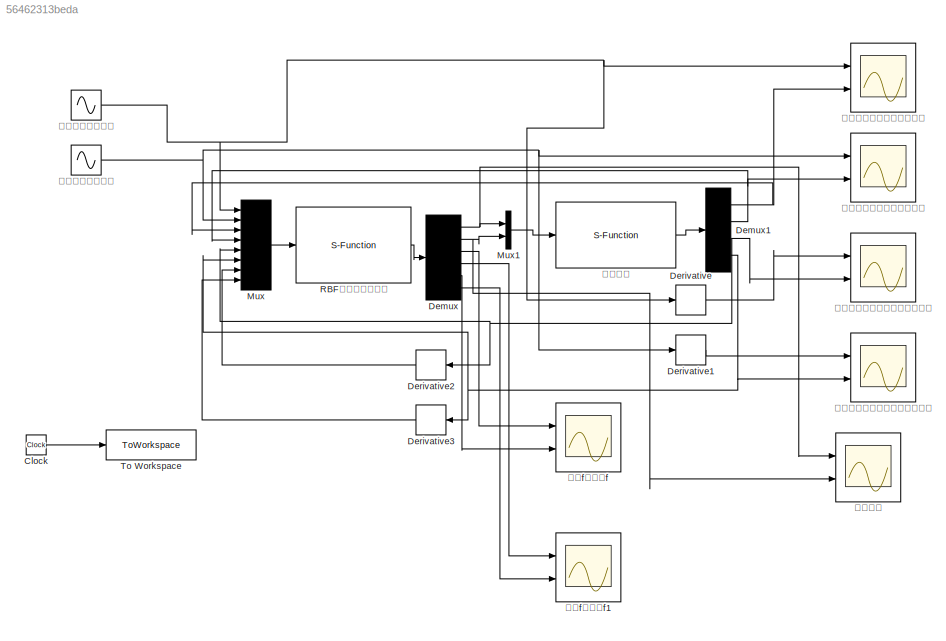
MODEL slx_56462313beda
KIND model
CONFIG AbsTol = auto
CONFIG EnableMultiTasking = off
CONFIG FixedStep = 0.001
CONFIG MaxStep = auto
CONFIG MinStep = auto
CONFIG RelTol = 1e-3
CONFIG SampleTimeConstraint = Unconstrained
CONFIG Solver = ode4
CONFIG SolverName = ode4
CONFIG StartTime = 0
CONFIG StopTime = 20
BLOCK [Clock] Clock
BLOCK [Demux] Demux
  DisplayOption = bar
  Outputs = 6
  Ports = [1, 6]
BLOCK [Demux] Demux1
  DisplayOption = bar
  Ports = [1, 4]
BLOCK [Derivative] Derivative
BLOCK [Derivative] Derivative1
BLOCK [Derivative] Derivative2
BLOCK [Derivative] Derivative3
BLOCK [Mux] Mux
  DisplayOption = bar
  Inputs = 8
  Ports = [8, 1]
BLOCK [Mux] Mux1
  DisplayOption = bar
  Inputs = 2
  Ports = [2, 1]
BLOCK [S-Function] RBF神经网络控制器
  EnableBusSupport = off
  FunctionName = Book6142_Controller
  Ports = [1, 1]
  SFcnIsStateOwnerBlock = off
  SFunctionDeploymentMode = off
BLOCK [ToWorkspace] To Workspace
  FixptAsFi = on
  MaxDataPoints = inf
  Ports = [1]
  SampleTime = -1
  SaveFormat = Timeseries
  VariableName = time
BLOCK [S-Function] 二阶模型
  EnableBusSupport = off
  FunctionName = Book6142_Plant
  Ports = [1, 1]
  SFcnIsStateOwnerBlock = off
  SFunctionDeploymentMode = off
BLOCK [Scope] 关节一期望角度与实际角度
  Floating = off
  NumInputPorts = 2
  Ports = [2]
  ScopeSpecificationString = Simulink.scopes.TimeScopeBlockCfg('CurrentConfiguration', extmgr.ConfigurationSet(extmgr.Configuration('Core','General UI',true,'FigureColor',[1 1 1]),extmgr.Configuration('Core','Source UI',true),extmgr.Configuration('Sources','WiredSimulink',true,'DataLoggingVariableName','ScopeData3'),extmgr.Configuration('Visuals','Time Domain',true,'SerializedDisplays',{struct('MinYLimReal','0.525','MaxYLimRe...<+1566ch>
BLOCK [Scope] 关节一期望角速度与实际角速度
  Floating = off
  NumInputPorts = 2
  Ports = [2]
  ScopeSpecificationString = Simulink.scopes.TimeScopeBlockCfg('CurrentConfiguration', extmgr.ConfigurationSet(extmgr.Configuration('Core','General UI',true,'FigureColor',[1 1 1]),extmgr.Configuration('Core','Source UI',true),extmgr.Configuration('Sources','WiredSimulink',true),extmgr.Configuration('Visuals','Time Domain',true,'SerializedDisplays',{struct('MinYLimReal','-0.44032','MaxYLimReal','0.82125','YLabelReal','','MinYL...<+1528ch>
BLOCK [Scope] 关节二期望角度与实际角度
  Floating = off
  NumInputPorts = 2
  Ports = [2]
  ScopeSpecificationString = Simulink.scopes.TimeScopeBlockCfg('CurrentConfiguration', extmgr.ConfigurationSet(extmgr.Configuration('Core','General UI',true,'FigureColor',[1 1 1]),extmgr.Configuration('Core','Source UI',true),extmgr.Configuration('Sources','WiredSimulink',true,'DataLoggingVariableName','ScopeData1'),extmgr.Configuration('Visuals','Time Domain',true,'SerializedDisplays',{struct('MinYLimReal','0.18744','MaxYLim...<+1564ch>
BLOCK [Scope] 关节二期望角速度与实际角速度
  Floating = off
  NumInputPorts = 2
  Ports = [2]
  ScopeSpecificationString = Simulink.scopes.TimeScopeBlockCfg('CurrentConfiguration', extmgr.ConfigurationSet(extmgr.Configuration('Core','General UI',true,'FigureColor',[1 1 1]),extmgr.Configuration('Core','Source UI',true),extmgr.Configuration('Sources','WiredSimulink',true,'DataLoggingVariableName','ScopeData2'),extmgr.Configuration('Visuals','Time Domain',true,'SerializedDisplays',{struct('MinYLimReal','-0.42298','MaxYLi...<+1567ch>
BLOCK [Scope] 控制输入
  Floating = off
  NumInputPorts = 2
  Ports = [2]
  ScopeSpecificationString = Simulink.scopes.TimeScopeBlockCfg('CurrentConfiguration', extmgr.ConfigurationSet(extmgr.Configuration('Core','General UI',true,'FigureColor',[1 1 1]),extmgr.Configuration('Core','Source UI',true),extmgr.Configuration('Sources','WiredSimulink',true,'DataLoggingVariableName','ScopeData1'),extmgr.Configuration('Visuals','Time Domain',true,'SerializedDisplays',{struct('MinYLimReal','-96.61803','MaxYL...<+1572ch>
BLOCK [Scope] 期望f与实际f
  Floating = off
  NumInputPorts = 2
  Ports = [2]
  ScopeSpecificationString = Simulink.scopes.TimeScopeBlockCfg('CurrentConfiguration', extmgr.ConfigurationSet(extmgr.Configuration('Core','General UI',true,'FigureColor',[1 1 1]),extmgr.Configuration('Core','Source UI',true),extmgr.Configuration('Sources','WiredSimulink',true,'DataLoggingVariableName','ScopeData2'),extmgr.Configuration('Visuals','Time Domain',true,'SerializedDisplays',{struct('MinYLimReal','-4.38571','MaxYLi...<+1853ch>
BLOCK [Scope] 期望f与实际f1
  Floating = off
  NumInputPorts = 2
  Ports = [2]
  ScopeSpecificationString = Simulink.scopes.TimeScopeBlockCfg('CurrentConfiguration', extmgr.ConfigurationSet(extmgr.Configuration('Core','General UI',true,'FigureColor',[1 1 1]),extmgr.Configuration('Core','Source UI',true),extmgr.Configuration('Sources','WiredSimulink',true,'DataLoggingVariableName','ScopeData3'),extmgr.Configuration('Visuals','Time Domain',true,'SerializedDisplays',{struct('MinYLimReal','-1.41972','MaxYLi...<+1567ch>
BLOCK [Sin] 给定关节角一轨迹
  Amplitude = 0.2
  Bias = 1
  Frequency = 0.5*pi
  Ports = [0, 1]
  SampleTime = 0
BLOCK [Sin] 给定关节角二轨迹
  Amplitude = -0.2
  Bias = 1
  Frequency = 0.5*pi
  Phase = pi/2
  Ports = [0, 1]
  SampleTime = 0
LINE Clock:1 -> To Workspace:1
NET Demux1:1 -> Mux:3, 关节一期望角度与实际角度:2
NET Demux1:2 -> Mux:4, 关节二期望角度与实际角度:2
NET Demux1:3 -> Derivative2:1, Mux:5, 关节一期望角速度与实际角速度:2
NET Demux1:4 -> Derivative3:1, Mux:6, 关节二期望角速度与实际角速度:2
NET Demux:1 -> Mux1:1, 控制输入:1
NET Demux:2 -> Mux1:2, 控制输入:2
LINE Demux:3 -> 期望f与实际f:1
LINE Demux:4 -> 期望f与实际f1:1
LINE Demux:5 -> 期望f与实际f:2
LINE Demux:6 -> 期望f与实际f1:2
LINE Derivative1:1 -> 关节二期望角速度与实际角速度:1
LINE Derivative2:1 -> Mux:7
LINE Derivative3:1 -> Mux:8
LINE Derivative:1 -> 关节一期望角速度与实际角速度:1
LINE Mux1:1 -> 二阶模型:1
LINE Mux:1 -> RBF神经网络控制器:1
LINE RBF神经网络控制器:1 -> Demux:1
LINE 二阶模型:1 -> Demux1:1
NET 给定关节角一轨迹:1 -> Derivative:1, Mux:1, 关节一期望角度与实际角度:1
NET 给定关节角二轨迹:1 -> Derivative1:1, Mux:2, 关节二期望角度与实际角度:1
note: NET lines group one-source signal fan-out (src -> all destinations, sorted); 1:1 wires keep LINE
